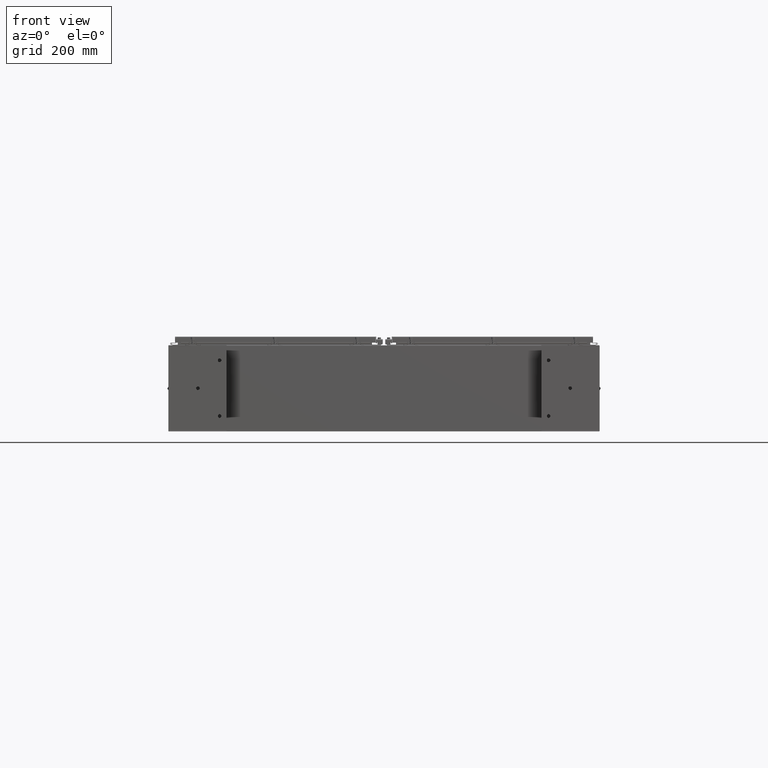
[diagram: clean part render]
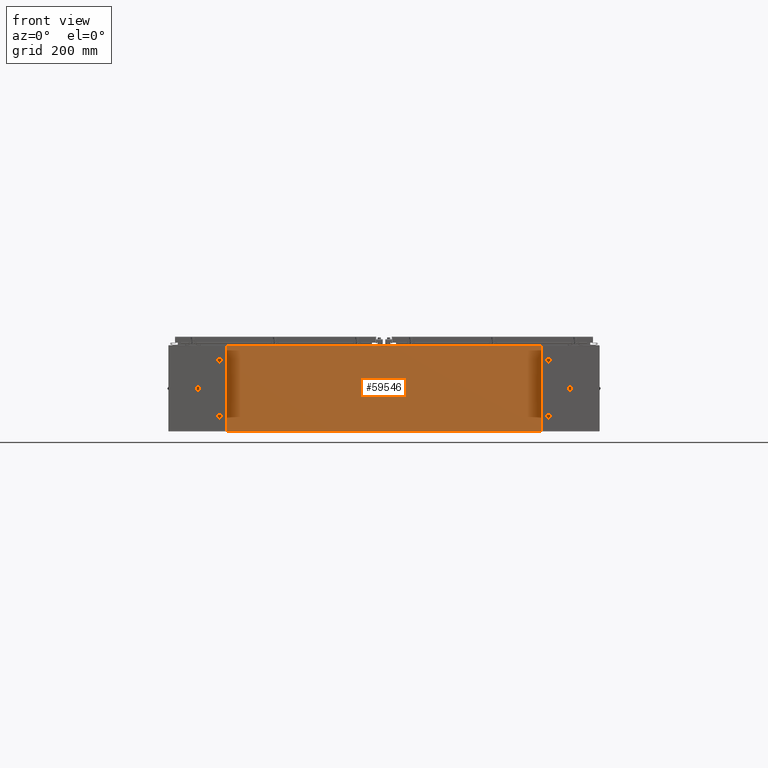
[diagram: same view with one face highlighted and labeled with its STEP entity id]
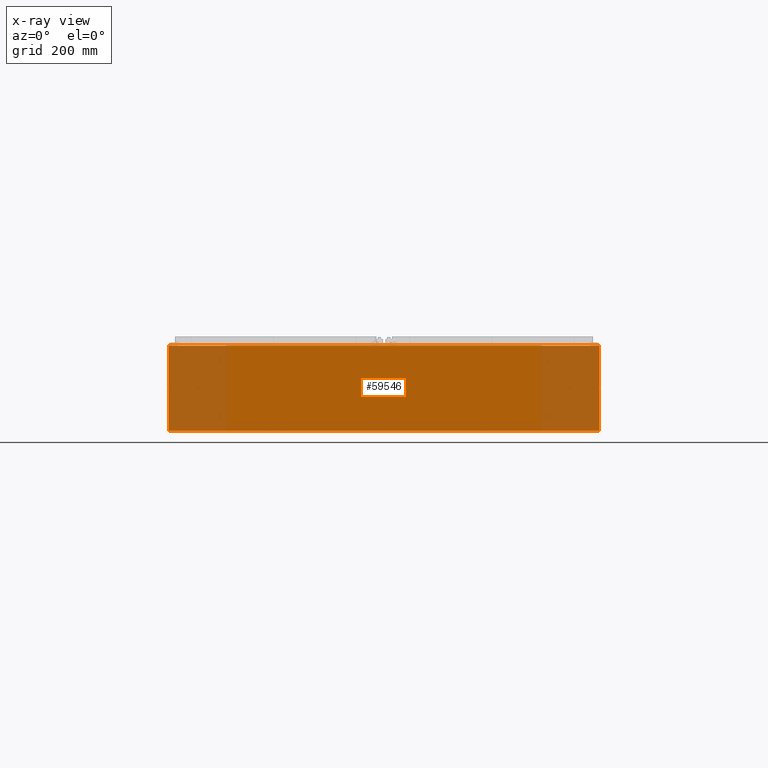
[diagram: x-ray of the same camera — body ghosted, the highlighted face saturated]
A machine part, front view. The second image highlights one B-rep face of the part: STEP entity #59546.
The next image is the same camera in x-ray: the body ghosted, the highlighted face saturated — about 27% of this face is hidden behind the body in this view.
In plain terms, the highlighted planar face has unit normal (-0, 1, 0).
Its self-contained STEP definition (entity closure, byte-faithful):
#117 = CARTESIAN_POINT ( 'NONE',  ( 29.92530000000000400, 0.0000000000000000000, 5.925300000000000000 ) ) ;
#1100 = EDGE_CURVE ( 'NONE', #3545, #44162, #35765, .T. ) ;
#1152 = VECTOR ( 'NONE', #29371, 39.37007874015748100 ) ;
#1664 = CIRCLE ( 'NONE', #29410, 0.01867499999999949400 ) ;
#1972 = ORIENTED_EDGE ( 'NONE', *, *, #42402, .F. ) ;
#3265 = CARTESIAN_POINT ( 'NONE',  ( -28.63719999999999300, -7.171100983368691200E-016, 5.912300000000000100 ) ) ;
#3545 = VERTEX_POINT ( 'NONE', #68087 ) ;
#3964 = VECTOR ( 'NONE', #36871, 39.37007874015748100 ) ;
#4187 = CARTESIAN_POINT ( 'NONE',  ( -29.92529999999999300, 0.0000000000000000000, -5.925300000000000000 ) ) ;
#7231 = LINE ( 'NONE', #25899, #34081 ) ;
#9154 = LINE ( 'NONE', #25994, #23459 ) ;
#10285 = CARTESIAN_POINT ( 'NONE',  ( 28.65587500000000200, 0.0000000000000000000, 5.874950000000000100 ) ) ;
#10304 = FACE_OUTER_BOUND ( 'NONE', #68389, .T. ) ;
#10428 = EDGE_CURVE ( 'NONE', #55102, #43822, #37539, .T. ) ;
#10950 = EDGE_CURVE ( 'NONE', #54268, #52908, #7231, .T. ) ;
#12319 = EDGE_CURVE ( 'NONE', #44162, #54423, #26351, .T. ) ;
#14261 = EDGE_CURVE ( 'NONE', #56466, #67350, #35318, .T. ) ;
#14327 = VECTOR ( 'NONE', #64948, 39.37007874015748100 ) ;
#15647 = DIRECTION ( 'NONE',  ( 0.0000000000000000000, 0.0000000000000000000, -1.000000000000000000 ) ) ;
#16322 = DIRECTION ( 'NONE',  ( 1.000000000000000000, 0.0000000000000000000, 0.0000000000000000000 ) ) ;
#16813 = VECTOR ( 'NONE', #32481, 39.37007874015748100 ) ;
#17369 = CARTESIAN_POINT ( 'NONE',  ( 28.63720000000000000, 0.0000000000000000000, 5.874950000000000100 ) ) ;
#17597 = DIRECTION ( 'NONE',  ( -0.0000000000000000000, 1.000000000000000000, -0.0000000000000000000 ) ) ;
#17687 = ORIENTED_EDGE ( 'NONE', *, *, #29449, .F. ) ;
#20332 = CARTESIAN_POINT ( 'NONE',  ( 29.92530000000000400, 0.0000000000000000000, -5.925300000000000000 ) ) ;
#21186 = PLANE ( 'NONE',  #52055 ) ;
#21933 = ORIENTED_EDGE ( 'NONE', *, *, #30602, .F. ) ;
#23459 = VECTOR ( 'NONE', #31369, 39.37007874015748100 ) ;
#23505 = CARTESIAN_POINT ( 'NONE',  ( -29.92529999999999300, 0.0000000000000000000, 5.925300000000000000 ) ) ;
#23661 = EDGE_CURVE ( 'NONE', #52908, #54423, #63099, .T. ) ;
#24645 = CARTESIAN_POINT ( 'NONE',  ( -28.63719999999998900, -7.171100983368691200E-016, 5.912300000000000100 ) ) ;
#25899 = CARTESIAN_POINT ( 'NONE',  ( -29.92529999999999300, 0.0000000000000000000, 5.925300000000000000 ) ) ;
#25994 = CARTESIAN_POINT ( 'NONE',  ( 28.63720000000000000, 0.0000000000000000000, 0.0000000000000000000 ) ) ;
#26031 = VERTEX_POINT ( 'NONE', #20332 ) ;
#26231 = CARTESIAN_POINT ( 'NONE',  ( 28.63720000000000000, -7.171100983368691200E-016, 5.912300000000000100 ) ) ;
#26351 = LINE ( 'NONE', #61668, #1152 ) ;
#26583 = DIRECTION ( 'NONE',  ( 0.0000000000000000000, -1.000000000000000000, 0.0000000000000000000 ) ) ;
#27159 = ORIENTED_EDGE ( 'NONE', *, *, #30470, .T. ) ;
#28247 = ORIENTED_EDGE ( 'NONE', *, *, #10950, .T. ) ;
#28621 = LINE ( 'NONE', #54129, #14327 ) ;
#29371 = DIRECTION ( 'NONE',  ( 0.0000000000000000000, 0.0000000000000000000, 1.000000000000000000 ) ) ;
#29410 = AXIS2_PLACEMENT_3D ( 'NONE', #10285, #47956, #15647 ) ;
#29449 = EDGE_CURVE ( 'NONE', #58575, #52822, #1664, .T. ) ;
#30470 = EDGE_CURVE ( 'NONE', #43822, #26031, #45462, .T. ) ;
#30602 = EDGE_CURVE ( 'NONE', #56466, #3545, #38677, .T. ) ;
#31369 = DIRECTION ( 'NONE',  ( 0.0000000000000000000, 0.0000000000000000000, 1.000000000000000000 ) ) ;
#31463 = CARTESIAN_POINT ( 'NONE',  ( 28.67455000000051200, 0.0000000000000000000, 2.489279424404423600E-012 ) ) ;
#32481 = DIRECTION ( 'NONE',  ( 0.0000000000000000000, 0.0000000000000000000, -1.000000000000000000 ) ) ;
#33669 = CARTESIAN_POINT ( 'NONE',  ( -28.63719999999998900, -0.0000000000000000000, 0.0000000000000000000 ) ) ;
#34081 = VECTOR ( 'NONE', #52761, 39.37007874015748100 ) ;
#34403 = VECTOR ( 'NONE', #36986, 39.37007874015748100 ) ;
#35318 = LINE ( 'NONE', #3265, #49723 ) ;
#35765 = CIRCLE ( 'NONE', #52994, 0.01867499999999949400 ) ;
#36002 = ORIENTED_EDGE ( 'NONE', *, *, #10428, .T. ) ;
#36871 = DIRECTION ( 'NONE',  ( 8.681145560800009800E-014, 0.0000000000000000000, -1.000000000000000000 ) ) ;
#36958 = VECTOR ( 'NONE', #65975, 39.37007874015748100 ) ;
#36964 = ORIENTED_EDGE ( 'NONE', *, *, #47042, .T. ) ;
#36986 = DIRECTION ( 'NONE',  ( 1.000000000000000000, 0.0000000000000000000, 0.0000000000000000000 ) ) ;
#37539 = LINE ( 'NONE', #48593, #39258 ) ;
#38677 = LINE ( 'NONE', #33669, #36958 ) ;
#38739 = ORIENTED_EDGE ( 'NONE', *, *, #23661, .T. ) ;
#39258 = VECTOR ( 'NONE', #16322, 39.37007874015748100 ) ;
#42402 = EDGE_CURVE ( 'NONE', #52822, #67350, #9154, .T. ) ;
#42436 = CARTESIAN_POINT ( 'NONE',  ( -29.92529999999999300, 0.0000000000000000000, 5.925300000000000000 ) ) ;
#43650 = CARTESIAN_POINT ( 'NONE',  ( -28.67454999999998600, 0.0000000000000000000, 5.925300000000000000 ) ) ;
#43822 = VERTEX_POINT ( 'NONE', #68254 ) ;
#44162 = VERTEX_POINT ( 'NONE', #65646 ) ;
#45462 = LINE ( 'NONE', #117, #16813 ) ;
#46769 = ORIENTED_EDGE ( 'NONE', *, *, #12319, .F. ) ;
#46931 = LINE ( 'NONE', #31463, #3964 ) ;
#47042 = EDGE_CURVE ( 'NONE', #26031, #54268, #28621, .T. ) ;
#47956 = DIRECTION ( 'NONE',  ( -0.0000000000000000000, 1.000000000000000000, -0.0000000000000000000 ) ) ;
#48593 = CARTESIAN_POINT ( 'NONE',  ( -29.92529999999999300, 0.0000000000000000000, 5.925300000000000000 ) ) ;
#49723 = VECTOR ( 'NONE', #57145, 39.37007874015748100 ) ;
#49903 = CARTESIAN_POINT ( 'NONE',  ( -28.65587499999998800, 0.0000000000000000000, 5.874950000000000100 ) ) ;
#52055 = AXIS2_PLACEMENT_3D ( 'NONE', #58619, #26583, #64275 ) ;
#52761 = DIRECTION ( 'NONE',  ( -0.0000000000000000000, -0.0000000000000000000, 1.000000000000000000 ) ) ;
#52822 = VERTEX_POINT ( 'NONE', #17369 ) ;
#52908 = VERTEX_POINT ( 'NONE', #23505 ) ;
#52994 = AXIS2_PLACEMENT_3D ( 'NONE', #49903, #17597, #55267 ) ;
#54129 = CARTESIAN_POINT ( 'NONE',  ( -29.92529999999999300, 0.0000000000000000000, -5.925300000000000000 ) ) ;
#54268 = VERTEX_POINT ( 'NONE', #4187 ) ;
#54423 = VERTEX_POINT ( 'NONE', #43650 ) ;
#55102 = VERTEX_POINT ( 'NONE', #65247 ) ;
#55156 = ORIENTED_EDGE ( 'NONE', *, *, #1100, .F. ) ;
#55267 = DIRECTION ( 'NONE',  ( 0.0000000000000000000, 0.0000000000000000000, -1.000000000000000000 ) ) ;
#56466 = VERTEX_POINT ( 'NONE', #24645 ) ;
#57145 = DIRECTION ( 'NONE',  ( 1.000000000000000000, 0.0000000000000000000, 0.0000000000000000000 ) ) ;
#58575 = VERTEX_POINT ( 'NONE', #61116 ) ;
#58619 = CARTESIAN_POINT ( 'NONE',  ( 0.0000000000000000000, 0.0000000000000000000, 0.0000000000000000000 ) ) ;
#59546 = ADVANCED_FACE ( 'NONE', ( #10304 ), #21186, .F. ) ;
#60464 = EDGE_CURVE ( 'NONE', #55102, #58575, #46931, .T. ) ;
#61084 = ORIENTED_EDGE ( 'NONE', *, *, #60464, .F. ) ;
#61116 = CARTESIAN_POINT ( 'NONE',  ( 28.67455000000000000, 0.0000000000000000000, 5.874950000000000100 ) ) ;
#61668 = CARTESIAN_POINT ( 'NONE',  ( -28.67454999999998600, -0.0000000000000000000, 0.0000000000000000000 ) ) ;
#63099 = LINE ( 'NONE', #42436, #34403 ) ;
#64275 = DIRECTION ( 'NONE',  ( 0.0000000000000000000, -0.0000000000000000000, -1.000000000000000000 ) ) ;
#64671 = ORIENTED_EDGE ( 'NONE', *, *, #14261, .T. ) ;
#64948 = DIRECTION ( 'NONE',  ( -1.000000000000000000, -0.0000000000000000000, -0.0000000000000000000 ) ) ;
#65247 = CARTESIAN_POINT ( 'NONE',  ( 28.67454999999998200, 0.0000000000000000000, 5.925300000000000000 ) ) ;
#65646 = CARTESIAN_POINT ( 'NONE',  ( -28.67454999999998600, 0.0000000000000000000, 5.874950000000000100 ) ) ;
#65975 = DIRECTION ( 'NONE',  ( 0.0000000000000000000, 0.0000000000000000000, -1.000000000000000000 ) ) ;
#67350 = VERTEX_POINT ( 'NONE', #26231 ) ;
#68087 = CARTESIAN_POINT ( 'NONE',  ( -28.63719999999998900, -0.0000000000000000000, 5.874950000000000100 ) ) ;
#68254 = CARTESIAN_POINT ( 'NONE',  ( 29.92530000000000400, 0.0000000000000000000, 5.925300000000000000 ) ) ;
#68389 = EDGE_LOOP ( 'NONE', ( #46769, #55156, #21933, #64671, #1972, #17687, #61084, #36002, #27159, #36964, #28247, #38739 ) ) ;